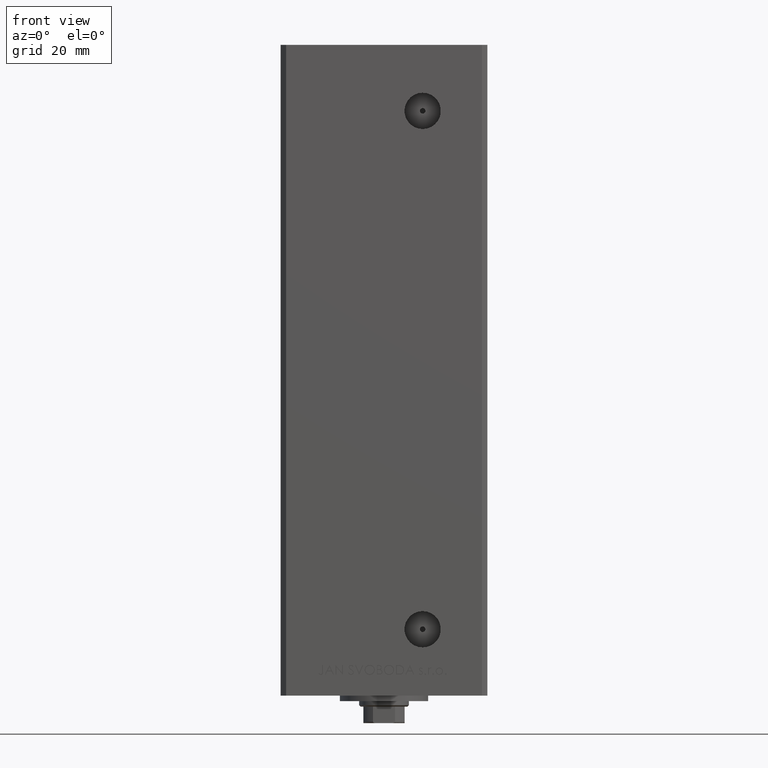
[diagram: clean part render]
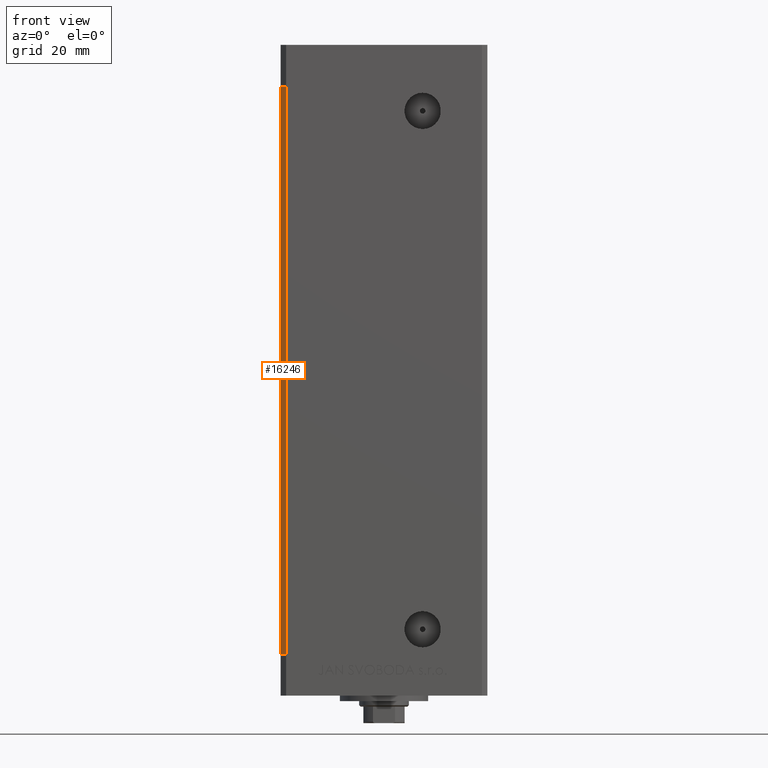
[diagram: same view with one face highlighted and labeled with its STEP entity id]
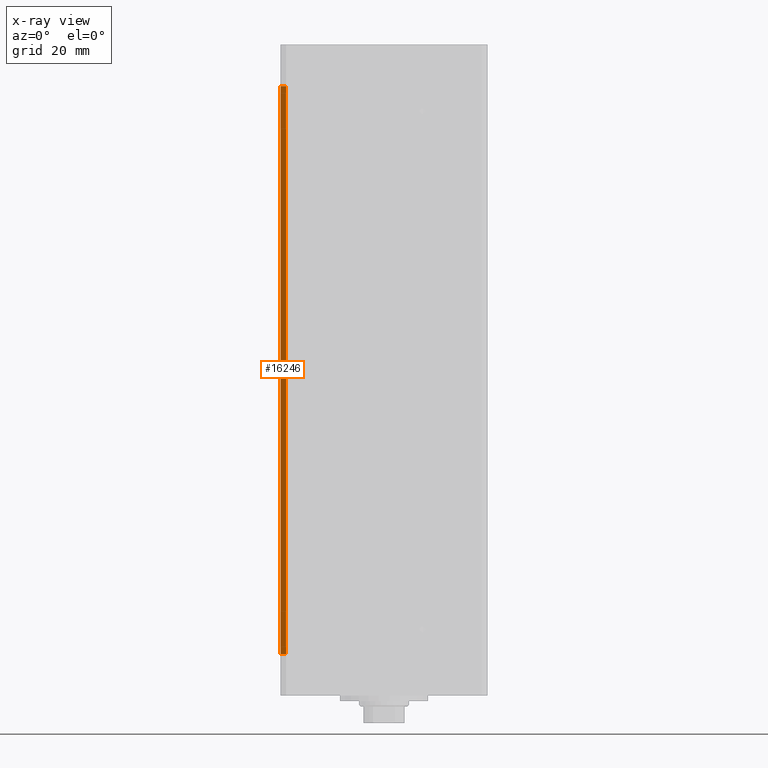
[diagram: x-ray of the same camera — body ghosted, the highlighted face saturated]
A machine part, front view. The second image highlights one B-rep face of the part: STEP entity #16246.
The next image is the same camera in x-ray: the body ghosted, the highlighted face saturated — about 0% of this face is hidden behind the body in this view.
In plain terms, the highlighted planar face has unit normal (0.7071, 0.7071, 0).
Its self-contained STEP definition (entity closure, byte-faithful):
#115 = LINE ( 'NONE', #38819, #9878 ) ;
#1257 = EDGE_CURVE ( 'NONE', #29761, #33454, #115, .T. ) ;
#3028 = EDGE_CURVE ( 'NONE', #41456, #33454, #49524, .T. ) ;
#4709 = EDGE_CURVE ( 'NONE', #12245, #41456, #13927, .T. ) ;
#5272 = ORIENTED_EDGE ( 'NONE', *, *, #35010, .F. ) ;
#7208 = CARTESIAN_POINT ( 'NONE',  ( -37.49999999999999289, -30.50000000000000000, 0.000000000000000000 ) ) ;
#8610 = ORIENTED_EDGE ( 'NONE', *, *, #4709, .T. ) ;
#9878 = VECTOR ( 'NONE', #19728, 1000.000000000000000 ) ;
#11305 = ORIENTED_EDGE ( 'NONE', *, *, #1257, .F. ) ;
#12245 = VERTEX_POINT ( 'NONE', #30270 ) ;
#13201 = VECTOR ( 'NONE', #36068, 1000.000000000000000 ) ;
#13927 = LINE ( 'NONE', #28515, #13201 ) ;
#15098 = CARTESIAN_POINT ( 'NONE',  ( -37.49999999999999289, -30.50000000000000000, 0.000000000000000000 ) ) ;
#15213 = DIRECTION ( 'NONE',  ( 0.7071067811865474617, -0.7071067811865474617, 0.000000000000000000 ) ) ;
#15382 = ORIENTED_EDGE ( 'NONE', *, *, #3028, .T. ) ;
#15459 = CARTESIAN_POINT ( 'NONE',  ( -37.49999999999999289, -30.50000000000000000, 206.0000000000000000 ) ) ;
#16246 = ADVANCED_FACE ( 'NONE', ( #24157 ), #24417, .F. ) ;
#16378 = DIRECTION ( 'NONE',  ( -0.7071067811865474617, 0.7071067811865474617, 0.000000000000000000 ) ) ;
#19728 = DIRECTION ( 'NONE',  ( -0.000000000000000000, -0.000000000000000000, -1.000000000000000000 ) ) ;
#20673 = VECTOR ( 'NONE', #15213, 1000.000000000000114 ) ;
#21947 = VECTOR ( 'NONE', #30420, 1000.000000000000114 ) ;
#24157 = FACE_OUTER_BOUND ( 'NONE', #31847, .T. ) ;
#24417 = PLANE ( 'NONE',  #33155 ) ;
#28515 = CARTESIAN_POINT ( 'NONE',  ( -37.49999999999999289, -30.50000000000000000, 206.0000000000000000 ) ) ;
#29761 = VERTEX_POINT ( 'NONE', #48293 ) ;
#30270 = CARTESIAN_POINT ( 'NONE',  ( -37.49999999999999289, -30.50000000000000000, 206.0000000000000000 ) ) ;
#30420 = DIRECTION ( 'NONE',  ( 0.7071067811865474617, -0.7071067811865474617, 0.000000000000000000 ) ) ;
#30530 = LINE ( 'NONE', #15459, #20673 ) ;
#31847 = EDGE_LOOP ( 'NONE', ( #15382, #11305, #5272, #8610 ) ) ;
#33155 = AXIS2_PLACEMENT_3D ( 'NONE', #39756, #35470, #16378 ) ;
#33454 = VERTEX_POINT ( 'NONE', #39553 ) ;
#35010 = EDGE_CURVE ( 'NONE', #12245, #29761, #30530, .T. ) ;
#35470 = DIRECTION ( 'NONE',  ( 0.7071067811865475727, 0.7071067811865475727, -0.000000000000000000 ) ) ;
#36068 = DIRECTION ( 'NONE',  ( -0.000000000000000000, -0.000000000000000000, -1.000000000000000000 ) ) ;
#38819 = CARTESIAN_POINT ( 'NONE',  ( -35.49999999999999289, -32.50000000000000000, 206.0000000000000000 ) ) ;
#39553 = CARTESIAN_POINT ( 'NONE',  ( -35.49999999999999289, -32.50000000000000000, 0.000000000000000000 ) ) ;
#39756 = CARTESIAN_POINT ( 'NONE',  ( -37.49999999999999289, -30.50000000000000000, 206.0000000000000000 ) ) ;
#41456 = VERTEX_POINT ( 'NONE', #7208 ) ;
#48293 = CARTESIAN_POINT ( 'NONE',  ( -35.49999999999999289, -32.50000000000000000, 206.0000000000000000 ) ) ;
#49524 = LINE ( 'NONE', #15098, #21947 ) ;